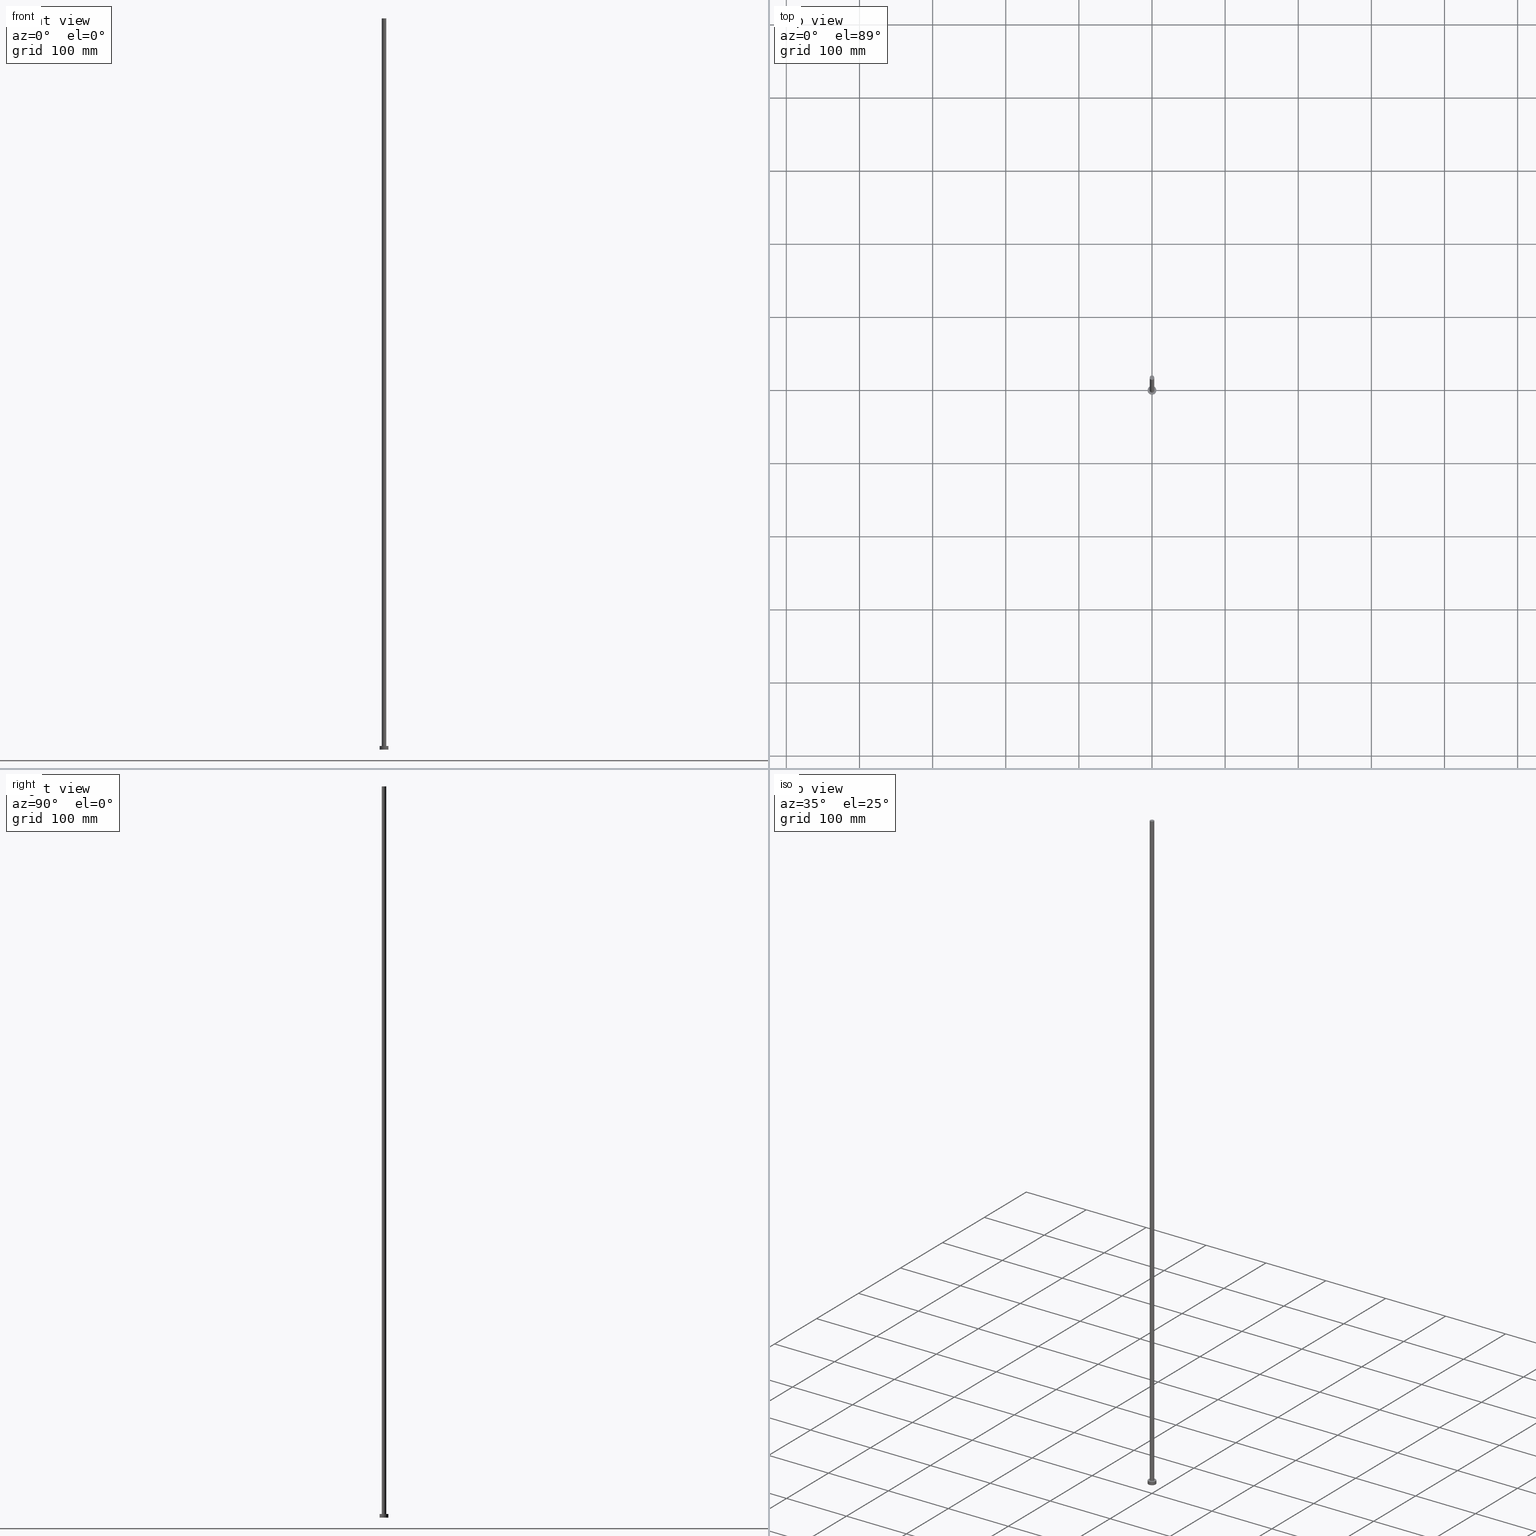
[diagram: canonical four-view strip — front | top / right | iso, engineering-drawing reading convention]
A machine part, canonical four-view strip (front | top / right | iso — engineering-drawing reading convention). The complete STEP part file that produces these views, byte-faithful:
ISO-10303-21;
HEADER;
FILE_DESCRIPTION (( 'STEP AP203' ),
    '1' );
FILE_NAME ('c24f.STEP',
    '2023-02-13T15:18:12',
    ( '' ),
    ( '' ),
    'SwSTEP 2.0',
    'SolidWorks 2019',
    '' );
FILE_SCHEMA (( 'CONFIG_CONTROL_DESIGN' ));
ENDSEC;

DATA;
#1 =( LENGTH_UNIT ( ) NAMED_UNIT ( * ) SI_UNIT ( .MILLI., .METRE. ) );
#2 = AXIS2_PLACEMENT_3D ( 'NONE', #200, #123, #184 ) ;
#3 = EDGE_CURVE ( 'NONE', #208, #10, #28, .T. ) ;
#4 = PERSON_AND_ORGANIZATION_ROLE ( 'design_owner' ) ;
#5 = VERTEX_POINT ( 'NONE', #80 ) ;
#6 = CARTESIAN_POINT ( 'NONE',  ( 3.100000000000000089, 3.796405077356793932E-16, 1000.000000000000000 ) ) ;
#7 = CARTESIAN_POINT ( 'NONE',  ( 0.000000000000000000, 0.000000000000000000, 5.000000000000000000 ) ) ;
#8 = ORIENTED_EDGE ( 'NONE', *, *, #68, .F. ) ;
#9 = CYLINDRICAL_SURFACE ( 'NONE', #106, 3.100000000000000089 ) ;
#10 = VERTEX_POINT ( 'NONE', #115 ) ;
#11 = DATE_AND_TIME ( #193, #152 ) ;
#12 = ORIENTED_EDGE ( 'NONE', *, *, #18, .T. ) ;
#13 = CARTESIAN_POINT ( 'NONE',  ( 0.000000000000000000, 0.000000000000000000, 1000.000000000000000 ) ) ;
#14 = CIRCLE ( 'NONE', #234, 6.000000000000000888 ) ;
#15 = CARTESIAN_POINT ( 'NONE',  ( 0.000000000000000000, 0.000000000000000000, 0.000000000000000000 ) ) ;
#16 = ORGANIZATION ( 'NEUR�EN�', 'NEUR�EN�', '' ) ;
#17 = CARTESIAN_POINT ( 'NONE',  ( 0.000000000000000000, 0.000000000000000000, 0.000000000000000000 ) ) ;
#18 = EDGE_CURVE ( 'NONE', #192, #5, #135, .T. ) ;
#19 = EDGE_LOOP ( 'NONE', ( #222, #114, #57, #33 ) ) ;
#20 = PERSON_AND_ORGANIZATION ( #243, #16 ) ;
#21 = SECURITY_CLASSIFICATION ( '', '', #191 ) ;
#22 = APPROVAL_DATE_TIME ( #242, #189 ) ;
#23 = DIRECTION ( 'NONE',  ( 0.000000000000000000, 0.000000000000000000, 1.000000000000000000 ) ) ;
#24 = CIRCLE ( 'NONE', #140, 3.100000000000000089 ) ;
#25 = CC_DESIGN_SECURITY_CLASSIFICATION ( #21, ( #143 ) ) ;
#26 = EDGE_CURVE ( 'NONE', #182, #94, #168, .T. ) ;
#27 = CARTESIAN_POINT ( 'NONE',  ( -3.100000000000000089, 0.000000000000000000, 1000.000000000000000 ) ) ;
#28 = CIRCLE ( 'NONE', #83, 3.100000000000000089 ) ;
#29 = AXIS2_PLACEMENT_3D ( 'NONE', #227, #223, #207 ) ;
#30 = ORIENTED_EDGE ( 'NONE', *, *, #68, .T. ) ;
#31 = AXIS2_PLACEMENT_3D ( 'NONE', #7, #142, #221 ) ;
#32 = DIRECTION ( 'NONE',  ( 0.000000000000000000, 0.000000000000000000, 1.000000000000000000 ) ) ;
#33 = ORIENTED_EDGE ( 'NONE', *, *, #100, .F. ) ;
#34 = LINE ( 'NONE', #107, #131 ) ;
#35 = APPROVAL_PERSON_ORGANIZATION ( #160, #166, #73 ) ;
#36 = ADVANCED_FACE ( 'NONE', ( #61 ), #150, .T. ) ;
#37 = CARTESIAN_POINT ( 'NONE',  ( 6.000000000000000888, 7.347880794884120722E-16, 0.000000000000000000 ) ) ;
#38 = APPROVAL_STATUS ( 'not_yet_approved' ) ;
#39 = EDGE_LOOP ( 'NONE', ( #8, #75, #144, #212 ) ) ;
#40 = APPROVAL_DATE_TIME ( #210, #85 ) ;
#41 = ORIENTED_EDGE ( 'NONE', *, *, #26, .F. ) ;
#42 = LOCAL_TIME ( 16, 18, 12.00000000000000000, #77 ) ;
#43 = PERSON_AND_ORGANIZATION ( #243, #16 ) ;
#44 = CARTESIAN_POINT ( 'NONE',  ( 0.000000000000000000, 0.000000000000000000, 5.000000000000000000 ) ) ;
#45 = DIRECTION ( 'NONE',  ( 1.000000000000000000, 0.000000000000000000, -0.000000000000000000 ) ) ;
#46 = AXIS2_PLACEMENT_3D ( 'NONE', #17, #255, #79 ) ;
#47 = CALENDAR_DATE ( 2023, 13, 2 ) ;
#48 = CC_DESIGN_PERSON_AND_ORGANIZATION_ASSIGNMENT ( #134, #151, ( #143 ) ) ;
#49 = EDGE_CURVE ( 'NONE', #94, #182, #14, .T. ) ;
#50 = CARTESIAN_POINT ( 'NONE',  ( 0.000000000000000000, 0.000000000000000000, 5.000000000000000000 ) ) ;
#51 = VECTOR ( 'NONE', #181, 1000.000000000000000 ) ;
#52 = DIRECTION ( 'NONE',  ( -0.000000000000000000, -0.000000000000000000, -1.000000000000000000 ) ) ;
#53 = LOCAL_TIME ( 16, 18, 12.00000000000000000, #229 ) ;
#54 = CARTESIAN_POINT ( 'NONE',  ( 0.000000000000000000, 0.000000000000000000, 1000.000000000000000 ) ) ;
#55 = PRODUCT_DEFINITION ( 'NEZN�M�', '', #143, #102 ) ;
#56 = PLANE ( 'NONE',  #112 ) ;
#57 = ORIENTED_EDGE ( 'NONE', *, *, #26, .T. ) ;
#58 = CARTESIAN_POINT ( 'NONE',  ( 0.000000000000000000, 0.000000000000000000, 5.000000000000000000 ) ) ;
#59 = PERSON_AND_ORGANIZATION ( #243, #16 ) ;
#60 = ORIENTED_EDGE ( 'NONE', *, *, #87, .F. ) ;
#61 = FACE_OUTER_BOUND ( 'NONE', #39, .T. ) ;
#62 = DATE_AND_TIME ( #231, #53 ) ;
#63 = LOCAL_TIME ( 16, 18, 12.00000000000000000, #165 ) ;
#64 = DIRECTION ( 'NONE',  ( 1.000000000000000000, 0.000000000000000000, 0.000000000000000000 ) ) ;
#65 = SHAPE_DEFINITION_REPRESENTATION ( #99, #88 ) ;
#66 = CARTESIAN_POINT ( 'NONE',  ( -6.000000000000000888, 0.000000000000000000, 5.000000000000000000 ) ) ;
#67 = DIRECTION ( 'NONE',  ( 0.000000000000000000, 0.000000000000000000, 1.000000000000000000 ) ) ;
#68 = EDGE_CURVE ( 'NONE', #167, #10, #233, .T. ) ;
#69 = CC_DESIGN_PERSON_AND_ORGANIZATION_ASSIGNMENT ( #113, #249, ( #143 ) ) ;
#70 = CIRCLE ( 'NONE', #147, 3.100000000000000089 ) ;
#71 =( NAMED_UNIT ( * ) PLANE_ANGLE_UNIT ( ) SI_UNIT ( $, .RADIAN. ) );
#72 = APPROVAL_PERSON_ORGANIZATION ( #59, #85, #235 ) ;
#73 = APPROVAL_ROLE ( '' ) ;
#74 = FACE_OUTER_BOUND ( 'NONE', #175, .T. ) ;
#75 = ORIENTED_EDGE ( 'NONE', *, *, #159, .F. ) ;
#76 = VECTOR ( 'NONE', #239, 1000.000000000000000 ) ;
#77 = COORDINATED_UNIVERSAL_TIME_OFFSET ( 1, 0, .AHEAD. ) ;
#78 = ORIENTED_EDGE ( 'NONE', *, *, #159, .T. ) ;
#79 = DIRECTION ( 'NONE',  ( 1.000000000000000000, 0.000000000000000000, 0.000000000000000000 ) ) ;
#80 = CARTESIAN_POINT ( 'NONE',  ( -6.000000000000000888, 0.000000000000000000, 5.000000000000000000 ) ) ;
#81 = LOCAL_TIME ( 16, 18, 12.00000000000000000, #220 ) ;
#82 = FACE_OUTER_BOUND ( 'NONE', #93, .T. ) ;
#83 = AXIS2_PLACEMENT_3D ( 'NONE', #178, #32, #250 ) ;
#84 = VERTEX_POINT ( 'NONE', #27 ) ;
#85 = APPROVAL ( #38, 'NEUR�EN�' ) ;
#86 = EDGE_LOOP ( 'NONE', ( #127, #30, #203, #60 ) ) ;
#87 = EDGE_CURVE ( 'NONE', #84, #208, #154, .T. ) ;
#88 = ADVANCED_BREP_SHAPE_REPRESENTATION ( 'c24f', ( #157, #2 ), #125 ) ;
#89 = DIRECTION ( 'NONE',  ( -0.000000000000000000, -0.000000000000000000, -1.000000000000000000 ) ) ;
#90 = ORIENTED_EDGE ( 'NONE', *, *, #177, .T. ) ;
#91 = DIRECTION ( 'NONE',  ( 1.000000000000000000, 0.000000000000000000, 0.000000000000000000 ) ) ;
#92 = VECTOR ( 'NONE', #214, 1000.000000000000000 ) ;
#93 = EDGE_LOOP ( 'NONE', ( #230, #12 ) ) ;
#94 = VERTEX_POINT ( 'NONE', #199 ) ;
#95 = DATE_TIME_ROLE ( 'classification_date' ) ;
#96 = ORIENTED_EDGE ( 'NONE', *, *, #118, .F. ) ;
#97 = CARTESIAN_POINT ( 'NONE',  ( 0.000000000000000000, 0.000000000000000000, 1000.000000000000000 ) ) ;
#98 = APPROVAL_STATUS ( 'not_yet_approved' ) ;
#99 = PRODUCT_DEFINITION_SHAPE ( 'NONE', 'NONE',  #55 ) ;
#100 = EDGE_CURVE ( 'NONE', #5, #94, #216, .T. ) ;
#101 = EDGE_CURVE ( 'NONE', #5, #192, #217, .T. ) ;
#102 = DESIGN_CONTEXT ( 'detailed design', #244, 'design' ) ;
#103 = DIRECTION ( 'NONE',  ( 0.000000000000000000, 0.000000000000000000, 1.000000000000000000 ) ) ;
#104 = DIRECTION ( 'NONE',  ( 1.000000000000000000, 0.000000000000000000, 0.000000000000000000 ) ) ;
#105 = DIRECTION ( 'NONE',  ( 1.000000000000000000, 0.000000000000000000, 0.000000000000000000 ) ) ;
#106 = AXIS2_PLACEMENT_3D ( 'NONE', #225, #89, #130 ) ;
#107 = CARTESIAN_POINT ( 'NONE',  ( 6.000000000000000888, 7.347880794884120722E-16, 5.000000000000000000 ) ) ;
#108 = CYLINDRICAL_SURFACE ( 'NONE', #31, 6.000000000000000888 ) ;
#109 = ADVANCED_FACE ( 'NONE', ( #241 ), #108, .T. ) ;
#110 = FACE_OUTER_BOUND ( 'NONE', #124, .T. ) ;
#111 = DIRECTION ( 'NONE',  ( 0.000000000000000000, 0.000000000000000000, 1.000000000000000000 ) ) ;
#112 = AXIS2_PLACEMENT_3D ( 'NONE', #13, #111, #169 ) ;
#113 = PERSON_AND_ORGANIZATION ( #243, #16 ) ;
#114 = ORIENTED_EDGE ( 'NONE', *, *, #146, .T. ) ;
#115 = CARTESIAN_POINT ( 'NONE',  ( 3.100000000000000089, 3.796405077356793932E-16, 5.000000000000000000 ) ) ;
#116 = COORDINATED_UNIVERSAL_TIME_OFFSET ( 1, 0, .AHEAD. ) ;
#117 = ADVANCED_FACE ( 'NONE', ( #202, #82 ), #161, .T. ) ;
#118 = EDGE_CURVE ( 'NONE', #10, #208, #70, .T. ) ;
#119 = ORIENTED_EDGE ( 'NONE', *, *, #49, .F. ) ;
#120 = DIRECTION ( 'NONE',  ( -1.000000000000000000, 0.000000000000000000, 0.000000000000000000 ) ) ;
#121 = CARTESIAN_POINT ( 'NONE',  ( 0.000000000000000000, 0.000000000000000000, 5.000000000000000000 ) ) ;
#122 = ADVANCED_FACE ( 'NONE', ( #176 ), #128, .F. ) ;
#123 = DIRECTION ( 'NONE',  ( 0.000000000000000000, 0.000000000000000000, 1.000000000000000000 ) ) ;
#124 = EDGE_LOOP ( 'NONE', ( #78, #90 ) ) ;
#125 =( GEOMETRIC_REPRESENTATION_CONTEXT ( 3 ) GLOBAL_UNCERTAINTY_ASSIGNED_CONTEXT ( ( #236 ) ) GLOBAL_UNIT_ASSIGNED_CONTEXT ( ( #1, #71, #247 ) ) REPRESENTATION_CONTEXT ( 'NONE', 'WORKASPACE' ) );
#126 = DIRECTION ( 'NONE',  ( 1.000000000000000000, 0.000000000000000000, 0.000000000000000000 ) ) ;
#127 = ORIENTED_EDGE ( 'NONE', *, *, #177, .F. ) ;
#128 = PLANE ( 'NONE',  #29 ) ;
#129 = PERSON_AND_ORGANIZATION ( #243, #16 ) ;
#130 = DIRECTION ( 'NONE',  ( -1.000000000000000000, 0.000000000000000000, 0.000000000000000000 ) ) ;
#131 = VECTOR ( 'NONE', #52, 1000.000000000000000 ) ;
#132 = EDGE_LOOP ( 'NONE', ( #163, #96 ) ) ;
#133 = CARTESIAN_POINT ( 'NONE',  ( 6.000000000000000888, 7.347880794884120722E-16, 5.000000000000000000 ) ) ;
#134 = PERSON_AND_ORGANIZATION ( #243, #16 ) ;
#135 = CIRCLE ( 'NONE', #162, 6.000000000000000888 ) ;
#136 = DATE_TIME_ROLE ( 'creation_date' ) ;
#137 = AXIS2_PLACEMENT_3D ( 'NONE', #44, #103, #105 ) ;
#138 = PRODUCT_RELATED_PRODUCT_CATEGORY ( 'detail', '', ( #254 ) ) ;
#139 = CC_DESIGN_DATE_AND_TIME_ASSIGNMENT ( #62, #136, ( #55 ) ) ;
#140 = AXIS2_PLACEMENT_3D ( 'NONE', #183, #148, #126 ) ;
#141 = PERSON_AND_ORGANIZATION ( #243, #16 ) ;
#142 = DIRECTION ( 'NONE',  ( -0.000000000000000000, -0.000000000000000000, -1.000000000000000000 ) ) ;
#143 = PRODUCT_DEFINITION_FORMATION_WITH_SPECIFIED_SOURCE ( 'LIBOVOLN�', '', #254, .NOT_KNOWN. ) ;
#144 = ORIENTED_EDGE ( 'NONE', *, *, #87, .T. ) ;
#145 = ORIENTED_EDGE ( 'NONE', *, *, #100, .T. ) ;
#146 = EDGE_CURVE ( 'NONE', #192, #182, #34, .T. ) ;
#147 = AXIS2_PLACEMENT_3D ( 'NONE', #121, #23, #104 ) ;
#148 = DIRECTION ( 'NONE',  ( 0.000000000000000000, 0.000000000000000000, 1.000000000000000000 ) ) ;
#149 = PERSON_AND_ORGANIZATION_ROLE ( 'creator' ) ;
#150 = CYLINDRICAL_SURFACE ( 'NONE', #201, 3.100000000000000089 ) ;
#151 = PERSON_AND_ORGANIZATION_ROLE ( 'design_supplier' ) ;
#152 = LOCAL_TIME ( 16, 18, 12.00000000000000000, #116 ) ;
#153 = DIRECTION ( 'NONE',  ( -0.000000000000000000, -0.000000000000000000, -1.000000000000000000 ) ) ;
#154 = LINE ( 'NONE', #219, #76 ) ;
#155 = CC_DESIGN_APPROVAL ( #166, ( #55 ) ) ;
#156 = APPROVAL_PERSON_ORGANIZATION ( #20, #189, #253 ) ;
#157 = MANIFOLD_SOLID_BREP ( 'P�idat vysunut�m3', #246 ) ;
#158 = CC_DESIGN_DATE_AND_TIME_ASSIGNMENT ( #11, #95, ( #21 ) ) ;
#159 = EDGE_CURVE ( 'NONE', #84, #167, #24, .T. ) ;
#160 = PERSON_AND_ORGANIZATION ( #243, #16 ) ;
#161 = PLANE ( 'NONE',  #251 ) ;
#162 = AXIS2_PLACEMENT_3D ( 'NONE', #196, #194, #174 ) ;
#163 = ORIENTED_EDGE ( 'NONE', *, *, #3, .F. ) ;
#164 = APPROVAL_STATUS ( 'not_yet_approved' ) ;
#165 = COORDINATED_UNIVERSAL_TIME_OFFSET ( 1, 0, .AHEAD. ) ;
#166 = APPROVAL ( #164, 'NEUR�EN�' ) ;
#167 = VERTEX_POINT ( 'NONE', #6 ) ;
#168 = CIRCLE ( 'NONE', #46, 6.000000000000000888 ) ;
#169 = DIRECTION ( 'NONE',  ( 1.000000000000000000, 0.000000000000000000, -0.000000000000000000 ) ) ;
#170 = CIRCLE ( 'NONE', #198, 3.100000000000000089 ) ;
#171 = DIRECTION ( 'NONE',  ( 0.000000000000000000, 0.000000000000000000, 1.000000000000000000 ) ) ;
#172 = CALENDAR_DATE ( 2023, 13, 2 ) ;
#173 = CC_DESIGN_APPROVAL ( #85, ( #143 ) ) ;
#174 = DIRECTION ( 'NONE',  ( 1.000000000000000000, 0.000000000000000000, 0.000000000000000000 ) ) ;
#175 = EDGE_LOOP ( 'NONE', ( #204, #190, #145, #185 ) ) ;
#176 = FACE_OUTER_BOUND ( 'NONE', #232, .T. ) ;
#177 = EDGE_CURVE ( 'NONE', #167, #84, #170, .T. ) ;
#178 = CARTESIAN_POINT ( 'NONE',  ( 0.000000000000000000, 0.000000000000000000, 5.000000000000000000 ) ) ;
#179 = DATE_AND_TIME ( #248, #81 ) ;
#180 = APPLICATION_PROTOCOL_DEFINITION ( 'international standard', 'config_control_design', 1994, #188 ) ;
#181 = DIRECTION ( 'NONE',  ( -0.000000000000000000, -0.000000000000000000, -1.000000000000000000 ) ) ;
#182 = VERTEX_POINT ( 'NONE', #37 ) ;
#183 = CARTESIAN_POINT ( 'NONE',  ( 0.000000000000000000, 0.000000000000000000, 1000.000000000000000 ) ) ;
#184 = DIRECTION ( 'NONE',  ( 1.000000000000000000, 0.000000000000000000, 0.000000000000000000 ) ) ;
#185 = ORIENTED_EDGE ( 'NONE', *, *, #49, .T. ) ;
#186 = FACE_OUTER_BOUND ( 'NONE', #86, .T. ) ;
#187 = APPLICATION_PROTOCOL_DEFINITION ( 'international standard', 'config_control_design', 1994, #244 ) ;
#188 = APPLICATION_CONTEXT ( 'configuration controlled 3d designs of mechanical parts and assemblies' ) ;
#189 = APPROVAL ( #98, 'NEUR�EN�' ) ;
#190 = ORIENTED_EDGE ( 'NONE', *, *, #101, .F. ) ;
#191 = SECURITY_CLASSIFICATION_LEVEL ( 'unclassified' ) ;
#192 = VERTEX_POINT ( 'NONE', #133 ) ;
#193 = CALENDAR_DATE ( 2023, 13, 2 ) ;
#194 = DIRECTION ( 'NONE',  ( 0.000000000000000000, 0.000000000000000000, 1.000000000000000000 ) ) ;
#195 = PERSON_AND_ORGANIZATION_ROLE ( 'classification_officer' ) ;
#196 = CARTESIAN_POINT ( 'NONE',  ( 0.000000000000000000, 0.000000000000000000, 5.000000000000000000 ) ) ;
#197 = CC_DESIGN_PERSON_AND_ORGANIZATION_ASSIGNMENT ( #141, #149, ( #55 ) ) ;
#198 = AXIS2_PLACEMENT_3D ( 'NONE', #54, #205, #91 ) ;
#199 = CARTESIAN_POINT ( 'NONE',  ( -6.000000000000000888, 0.000000000000000000, 0.000000000000000000 ) ) ;
#200 = CARTESIAN_POINT ( 'NONE',  ( 0.000000000000000000, 0.000000000000000000, 0.000000000000000000 ) ) ;
#201 = AXIS2_PLACEMENT_3D ( 'NONE', #97, #153, #238 ) ;
#202 = FACE_BOUND ( 'NONE', #132, .T. ) ;
#203 = ORIENTED_EDGE ( 'NONE', *, *, #118, .T. ) ;
#204 = ORIENTED_EDGE ( 'NONE', *, *, #146, .F. ) ;
#205 = DIRECTION ( 'NONE',  ( 0.000000000000000000, 0.000000000000000000, 1.000000000000000000 ) ) ;
#206 = ADVANCED_FACE ( 'NONE', ( #110 ), #56, .T. ) ;
#207 = DIRECTION ( 'NONE',  ( 1.000000000000000000, 0.000000000000000000, -0.000000000000000000 ) ) ;
#208 = VERTEX_POINT ( 'NONE', #209 ) ;
#209 = CARTESIAN_POINT ( 'NONE',  ( -3.100000000000000089, 0.000000000000000000, 5.000000000000000000 ) ) ;
#210 = DATE_AND_TIME ( #172, #63 ) ;
#211 = AXIS2_PLACEMENT_3D ( 'NONE', #58, #213, #120 ) ;
#212 = ORIENTED_EDGE ( 'NONE', *, *, #3, .T. ) ;
#213 = DIRECTION ( 'NONE',  ( -0.000000000000000000, -0.000000000000000000, -1.000000000000000000 ) ) ;
#214 = DIRECTION ( 'NONE',  ( -0.000000000000000000, -0.000000000000000000, -1.000000000000000000 ) ) ;
#215 = CC_DESIGN_PERSON_AND_ORGANIZATION_ASSIGNMENT ( #129, #4, ( #254 ) ) ;
#216 = LINE ( 'NONE', #66, #92 ) ;
#217 = CIRCLE ( 'NONE', #137, 6.000000000000000888 ) ;
#218 = CARTESIAN_POINT ( 'NONE',  ( 3.100000000000000089, 3.796405077356793932E-16, 1000.000000000000000 ) ) ;
#219 = CARTESIAN_POINT ( 'NONE',  ( -3.100000000000000089, 0.000000000000000000, 1000.000000000000000 ) ) ;
#220 = COORDINATED_UNIVERSAL_TIME_OFFSET ( 1, 0, .AHEAD. ) ;
#221 = DIRECTION ( 'NONE',  ( -1.000000000000000000, 0.000000000000000000, 0.000000000000000000 ) ) ;
#222 = ORIENTED_EDGE ( 'NONE', *, *, #18, .F. ) ;
#223 = DIRECTION ( 'NONE',  ( 0.000000000000000000, 0.000000000000000000, 1.000000000000000000 ) ) ;
#224 = MECHANICAL_CONTEXT ( 'NONE', #188, 'mechanical' ) ;
#225 = CARTESIAN_POINT ( 'NONE',  ( 0.000000000000000000, 0.000000000000000000, 1000.000000000000000 ) ) ;
#226 = APPROVAL_DATE_TIME ( #179, #166 ) ;
#227 = CARTESIAN_POINT ( 'NONE',  ( 0.000000000000000000, 0.000000000000000000, 0.000000000000000000 ) ) ;
#228 = CYLINDRICAL_SURFACE ( 'NONE', #211, 6.000000000000000888 ) ;
#229 = COORDINATED_UNIVERSAL_TIME_OFFSET ( 1, 0, .AHEAD. ) ;
#230 = ORIENTED_EDGE ( 'NONE', *, *, #101, .T. ) ;
#231 = CALENDAR_DATE ( 2023, 13, 2 ) ;
#232 = EDGE_LOOP ( 'NONE', ( #119, #41 ) ) ;
#233 = LINE ( 'NONE', #218, #51 ) ;
#234 = AXIS2_PLACEMENT_3D ( 'NONE', #15, #171, #64 ) ;
#235 = APPROVAL_ROLE ( '' ) ;
#236 = UNCERTAINTY_MEASURE_WITH_UNIT (LENGTH_MEASURE( 1.000000000000000082E-05 ), #1, 'distance_accuracy_value', 'NONE');
#237 = ADVANCED_FACE ( 'NONE', ( #186 ), #9, .T. ) ;
#238 = DIRECTION ( 'NONE',  ( -1.000000000000000000, 0.000000000000000000, 0.000000000000000000 ) ) ;
#239 = DIRECTION ( 'NONE',  ( -0.000000000000000000, -0.000000000000000000, -1.000000000000000000 ) ) ;
#240 = CC_DESIGN_APPROVAL ( #189, ( #21 ) ) ;
#241 = FACE_OUTER_BOUND ( 'NONE', #19, .T. ) ;
#242 = DATE_AND_TIME ( #47, #42 ) ;
#243 = PERSON ( 'NEUR�EN�', 'NEUR�EN�', 'NEUR�EN�', ('NEUR�EN�'), ('NEUR�EN�'), ('NEUR�EN�') ) ;
#244 = APPLICATION_CONTEXT ( 'configuration controlled 3d designs of mechanical parts and assemblies' ) ;
#245 = ADVANCED_FACE ( 'NONE', ( #74 ), #228, .T. ) ;
#246 = CLOSED_SHELL ( 'NONE', ( #237, #109, #245, #117, #122, #36, #206 ) ) ;
#247 =( NAMED_UNIT ( * ) SI_UNIT ( $, .STERADIAN. ) SOLID_ANGLE_UNIT ( ) );
#248 = CALENDAR_DATE ( 2023, 13, 2 ) ;
#249 = PERSON_AND_ORGANIZATION_ROLE ( 'creator' ) ;
#250 = DIRECTION ( 'NONE',  ( 1.000000000000000000, 0.000000000000000000, 0.000000000000000000 ) ) ;
#251 = AXIS2_PLACEMENT_3D ( 'NONE', #50, #67, #45 ) ;
#252 = CC_DESIGN_PERSON_AND_ORGANIZATION_ASSIGNMENT ( #43, #195, ( #21 ) ) ;
#253 = APPROVAL_ROLE ( '' ) ;
#254 = PRODUCT ( 'c24f', 'c24f', '', ( #224 ) ) ;
#255 = DIRECTION ( 'NONE',  ( 0.000000000000000000, 0.000000000000000000, 1.000000000000000000 ) ) ;
ENDSEC;
END-ISO-10303-21;
